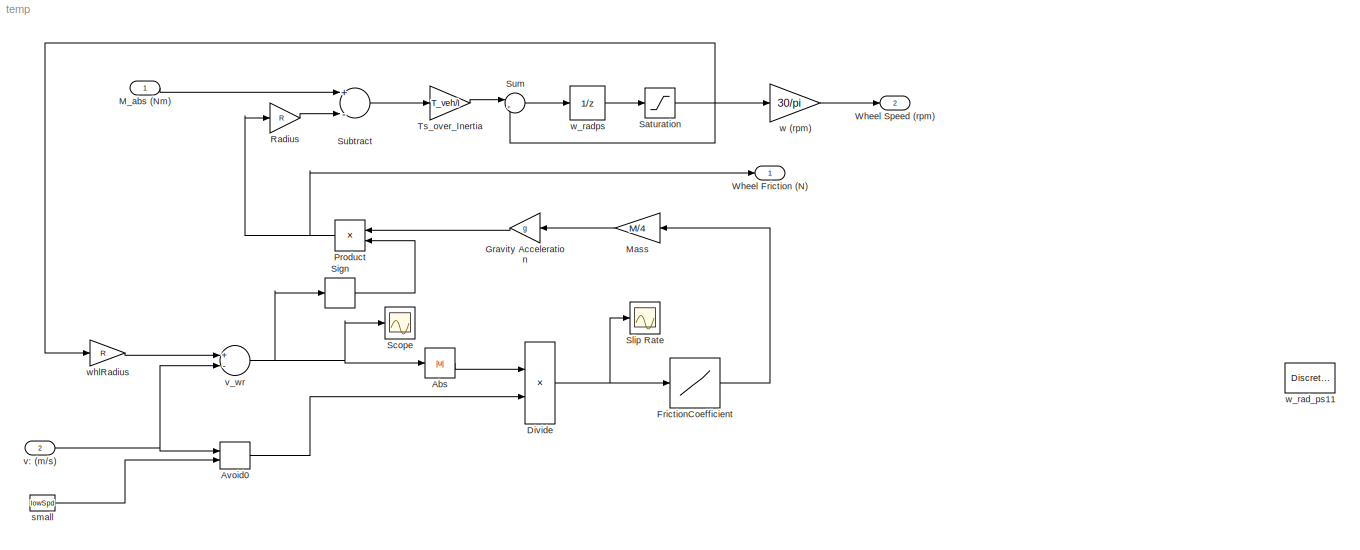
MODEL temp
KIND model
BLOCK [Abs] Abs
  SID = 95
  SaturateOnIntegerOverflow = off
BLOCK [MinMax] Avoid0
  Function = max
  InputSameDT = off
  Inputs = 2
  Ports = [2, 1]
  SID = 96
  SaturateOnIntegerOverflow = off
BLOCK [Product] Divide
  InputSameDT = off
  Inputs = */
  OutDataTypeStr = Inherit: Inherit via internal rule
  Ports = [2, 1]
  RndMeth = Floor
  SID = 97
  SaturateOnIntegerOverflow = off
BLOCK [Lookup] FrictionCoefficient
  InputValues = [0 0.2 0.3 1]
  LookUpMeth = Interpolation-Use End Values
  OutMax = 0.5
  OutMin = 0
  SID = 98
  SaturateOnIntegerOverflow = off
  Table = [0 0.3 0.2 0.2]
BLOCK [Gain] Gravity Acceleration
  Gain = g
  OutDataTypeStr = Inherit: Inherit via internal rule
  ParamDataTypeStr = Inherit: Inherit via internal rule
  SID = 99
  SaturateOnIntegerOverflow = off
BLOCK [Inport] M_abs (Nm)
  IconDisplay = Port number
  SID = 93
BLOCK [Gain] Mass
  Gain = M/4
  OutDataTypeStr = Inherit: Inherit via internal rule
  ParamDataTypeStr = Inherit: Inherit via internal rule
  SID = 100
  SaturateOnIntegerOverflow = off
BLOCK [Product] Product
  InputSameDT = off
  OutDataTypeStr = Inherit: Inherit via internal rule
  Ports = [2, 1]
  SID = 101
  SaturateOnIntegerOverflow = off
BLOCK [Gain] Radius
  Gain = R
  OutDataTypeStr = Inherit: Inherit via internal rule
  ParamDataTypeStr = Inherit: Inherit via internal rule
  SID = 102
  SaturateOnIntegerOverflow = off
BLOCK [Saturate] Saturation
  InputPortMap = u0
  LowerLimit = 0
  Ports = [1, 1]
  SID = 103
  UpperLimit = w_max
BLOCK [Scope] Scope
  DataFormat = StructureWithTime
  Floating = off
  NumInputPorts = 1
  Ports = [1]
  SID = 104
  SampleTime = 0
  ZoomMode = yonly
BLOCK [Signum] Sign
  SID = 105
BLOCK [Scope] Slip Rate
  DataFormat = StructureWithTime
  Floating = off
  LimitDataPoints = off
  NumInputPorts = 1
  Ports = [1]
  SID = 106
  SampleTime = 0
  SaveName = ScopeData1
  ZoomMode = yonly
BLOCK [Sum] Subtract
  InputSameDT = off
  Inputs = +-
  OutDataTypeStr = Inherit: Inherit via internal rule
  Ports = [2, 1]
  SID = 107
  SaturateOnIntegerOverflow = off
BLOCK [Sum] Sum
  IconShape = round
  InputSameDT = off
  Inputs = |++
  OutDataTypeStr = Inherit: Inherit via internal rule
  Ports = [2, 1]
  SID = 108
  SaturateOnIntegerOverflow = off
BLOCK [Gain] Ts_over_Inertia
  Gain = T_veh/I
  OutDataTypeStr = Inherit: Inherit via internal rule
  ParamDataTypeStr = Inherit: Inherit via internal rule
  SID = 109
  SaturateOnIntegerOverflow = off
BLOCK [Outport] Wheel Friction (N)
  IconDisplay = Port number
  SID = 115
BLOCK [Outport] Wheel Speed (rpm)
  IconDisplay = Port number
  Port = 2
  SID = 116
BLOCK [Constant] small
  OutMax = 1
  OutMin = 0.01
  SID = 110
  Value = lowSpd
BLOCK [Inport] v: (m//s)
  IconDisplay = Port number
  Port = 2
  SID = 94
BLOCK [Sum] v_wr
  InputSameDT = off
  Inputs = +-
  OutDataTypeStr = Inherit: Inherit via internal rule
  Ports = [2, 1]
  SID = 111
  SaturateOnIntegerOverflow = off
BLOCK [Gain] w (rpm)
  Gain = 30/pi
  OutDataTypeStr = Inherit: Inherit via internal rule
  OutMax = w_max*30/pi
  OutMin = 0
  ParamDataTypeStr = Inherit: Inherit via internal rule
  SID = 112
  SaturateOnIntegerOverflow = off
BLOCK [DiscreteIntegrator] w_rad_ps11
  ExternalReset = none
  ICPrevOutput = DiscIntNeverNeededParam
  ICPrevScaledInput = DiscIntNeverNeededParam
  InitialCondition = w0
  InitialConditionSource = internal
  IntegratorMethod = Integration: Forward Euler
  LimitOutput = on
  LowerSaturationLimit = 0
  OutMax = w_max
  OutMin = 0
  Ports = [1, 1]
  SID = 45
  SampleTime = -1
  UpperSaturationLimit = w_max
BLOCK [UnitDelay] w_radps
  InputProcessing = Elements as channels (sample based)
  SID = 113
  SampleTime = -1
  X0 = w0
BLOCK [Gain] whlRadius
  Gain = R
  OutDataTypeStr = Inherit: Inherit via internal rule
  OutMax = w_max/2
  OutMin = 0
  ParamDataTypeStr = Inherit: Inherit via internal rule
  SID = 114
  SaturateOnIntegerOverflow = off
LINE Abs:1 -> Divide:1
LINE Avoid0:1 -> Divide:2
NET Divide:1 -> FrictionCoefficient:1, Slip Rate:1
LINE FrictionCoefficient:1 -> Mass:1
LINE Gravity Acceleration:1 -> Product:1
LINE M_abs (Nm):1 -> Subtract:1
LINE Mass:1 -> Gravity Acceleration:1
NET Product:1 -> Radius:1, Wheel Friction (N):1
LINE Radius:1 -> Subtract:2
NET Saturation:1 -> Sum:2, w (rpm):1, whlRadius:1
LINE Sign:1 -> Product:2
LINE Subtract:1 -> Ts_over_Inertia:1
LINE Sum:1 -> w_radps:1
LINE Ts_over_Inertia:1 -> Sum:1
LINE small:1 -> Avoid0:2
NET v: (m//s):1 -> Avoid0:1, v_wr:2
NET v_wr:1 -> Abs:1, Scope:1, Sign:1
LINE w (rpm):1 -> Wheel Speed (rpm):1
LINE w_radps:1 -> Saturation:1
LINE whlRadius:1 -> v_wr:1
note: NET lines group one-source signal fan-out (src -> all destinations, sorted); 1:1 wires keep LINE
